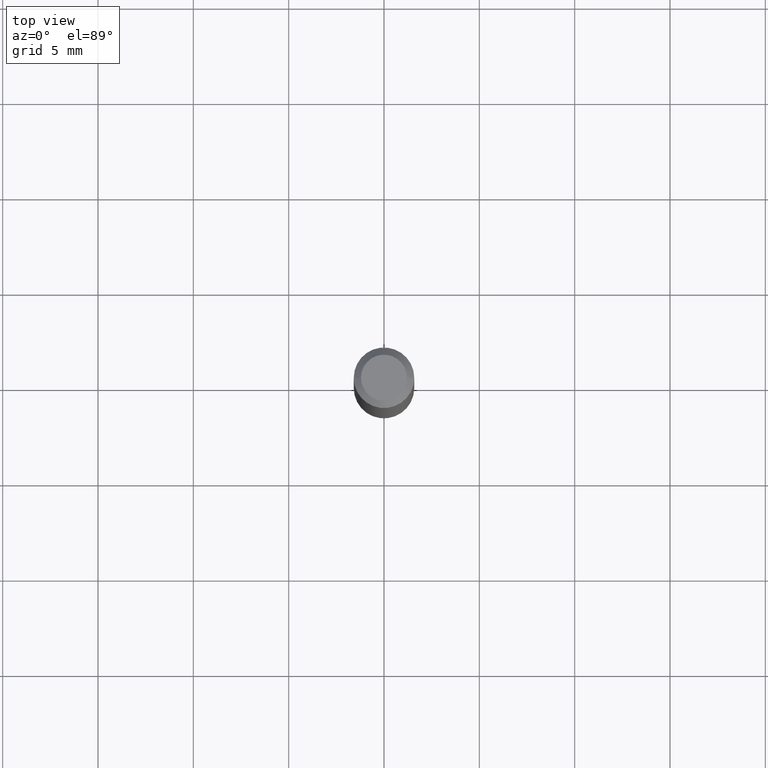
[diagram: clean part render]
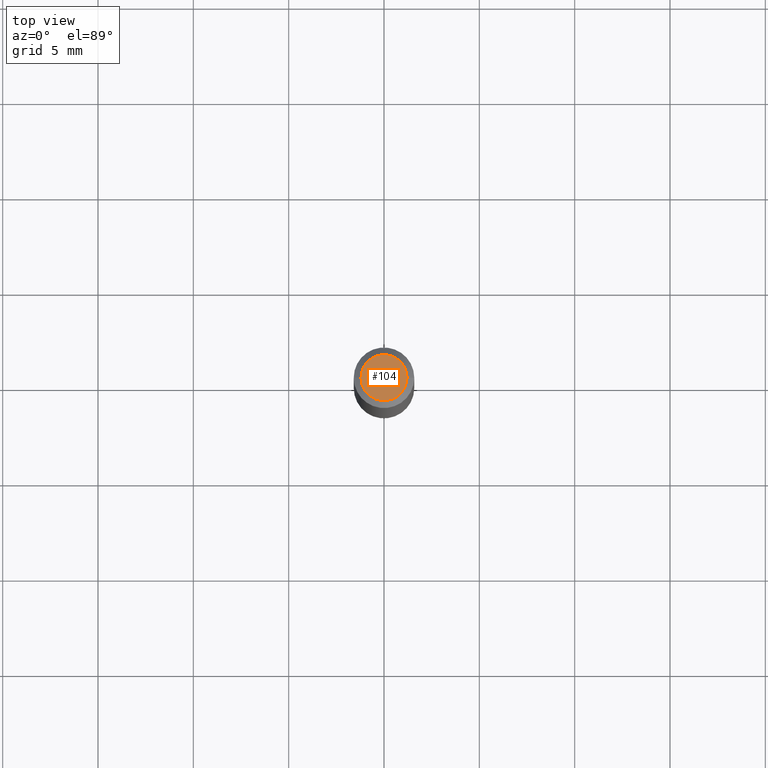
[diagram: same view with one face highlighted and labeled with its STEP entity id]
A machine part, top view. The second image highlights one B-rep face of the part: STEP entity #104.
In plain terms, the highlighted planar face has unit normal (0, -0, -1).
Its self-contained STEP definition (entity closure, byte-faithful):
#20 = AXIS2_PLACEMENT_3D ( 'NONE', #417, #347, #450 ) ;
#29 = CARTESIAN_POINT ( 'NONE',  ( -0.04749999999999999362, 3.578768372314205575E-16, -2.863788329398987133E-16 ) ) ;
#55 = DIRECTION ( 'NONE',  ( 2.438088387897960049E-29, -3.491481338843145188E-15, -1.000000000000000000 ) ) ;
#58 = FACE_OUTER_BOUND ( 'NONE', #354, .T. ) ;
#76 = ORIENTED_EDGE ( 'NONE', *, *, #451, .T. ) ;
#104 = ADVANCED_FACE ( 'NONE', ( #58 ), #222, .F. ) ;
#222 = PLANE ( 'NONE',  #247 ) ;
#223 = CARTESIAN_POINT ( 'NONE',  ( 3.316907271900976096E-16, 0.04749999999999999362, -3.090347800649974958E-16 ) ) ;
#247 = AXIS2_PLACEMENT_3D ( 'NONE', #223, #55, #437 ) ;
#271 = CIRCLE ( 'NONE', #299, 0.04749999999999999362 ) ;
#299 = AXIS2_PLACEMENT_3D ( 'NONE', #384, #306, #380 ) ;
#306 = DIRECTION ( 'NONE',  ( -2.445468806185136597E-29, 3.491481338843145583E-15, 1.000000000000000000 ) ) ;
#322 = ORIENTED_EDGE ( 'NONE', *, *, #452, .T. ) ;
#347 = DIRECTION ( 'NONE',  ( -2.445468806185136597E-29, 3.491481338843145583E-15, 1.000000000000000000 ) ) ;
#354 = EDGE_LOOP ( 'NONE', ( #76, #322 ) ) ;
#362 = VERTEX_POINT ( 'NONE', #412 ) ;
#380 = DIRECTION ( 'NONE',  ( 1.000000000000000000, -6.982962677686267499E-15, 4.852736867747366768E-29 ) ) ;
#384 = CARTESIAN_POINT ( 'NONE',  ( 7.003305027062207074E-45, -9.998863510493265527E-31, -2.863788329398962481E-16 ) ) ;
#412 = CARTESIAN_POINT ( 'NONE',  ( 0.04749999999999999362, -4.035134999187584047E-16, -2.863788329398937336E-16 ) ) ;
#417 = CARTESIAN_POINT ( 'NONE',  ( 7.003305027062207074E-45, -9.998863510493265527E-31, -2.863788329398962481E-16 ) ) ;
#437 = DIRECTION ( 'NONE',  ( -1.000000000000000000, 6.982962677686265922E-15, -4.876176775795935793E-29 ) ) ;
#447 = CIRCLE ( 'NONE', #20, 0.04749999999999999362 ) ;
#450 = DIRECTION ( 'NONE',  ( 1.000000000000000000, -6.982962677686267499E-15, 4.852736867747366768E-29 ) ) ;
#451 = EDGE_CURVE ( 'NONE', #464, #362, #271, .T. ) ;
#452 = EDGE_CURVE ( 'NONE', #362, #464, #447, .T. ) ;
#464 = VERTEX_POINT ( 'NONE', #29 ) ;